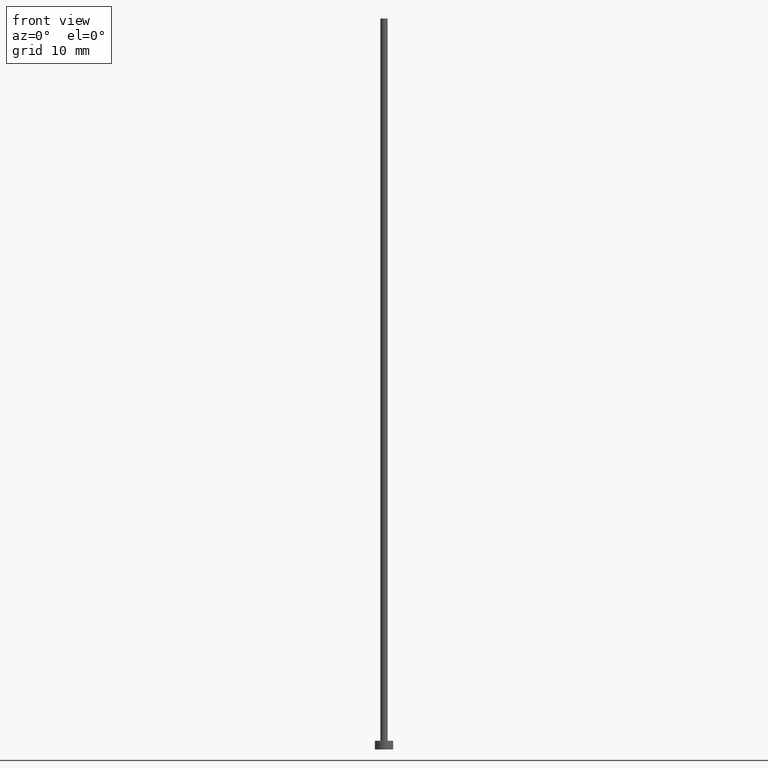
[diagram: clean part render]
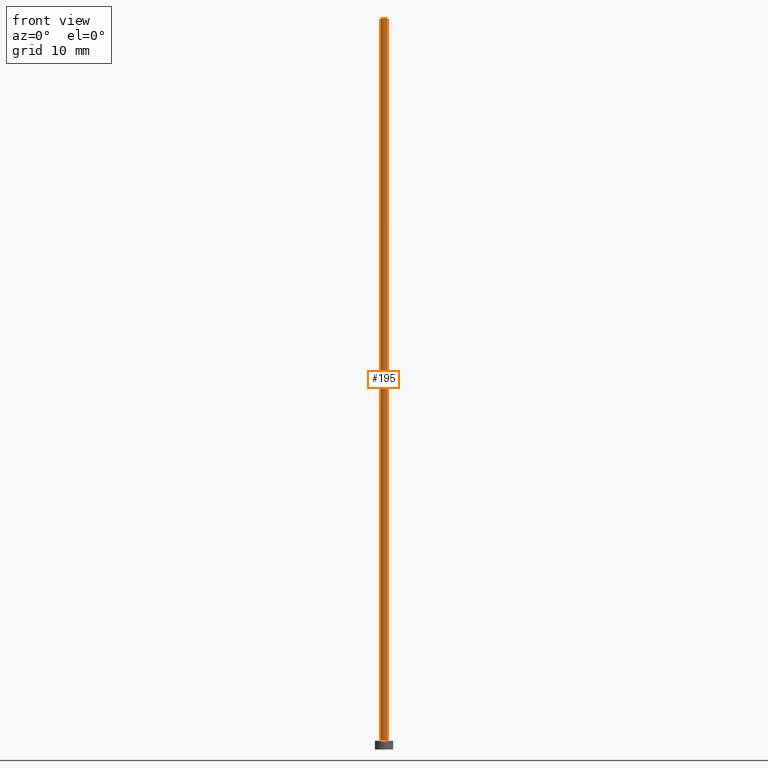
[diagram: same view with one face highlighted and labeled with its STEP entity id]
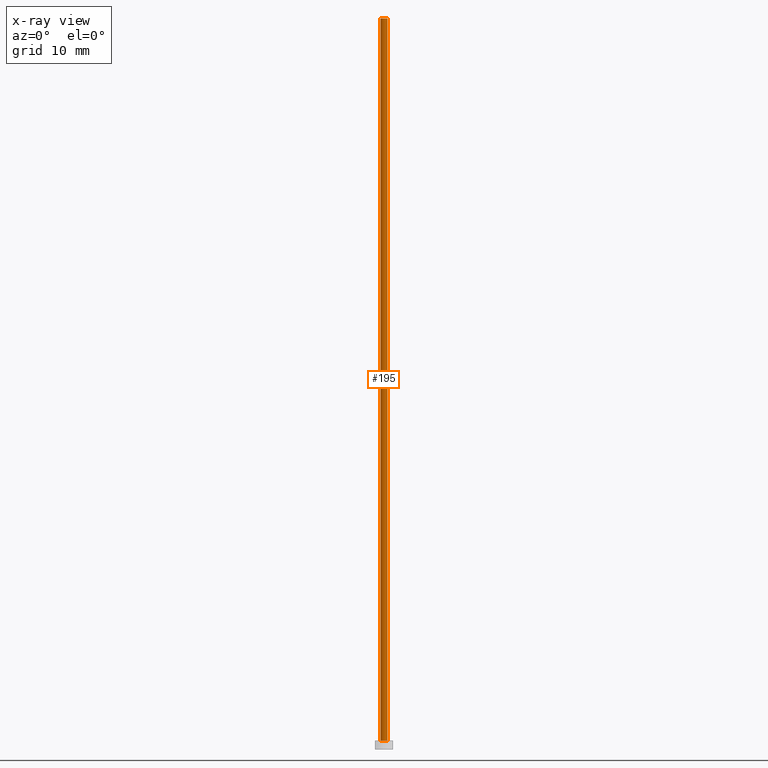
[diagram: x-ray of the same camera — body ghosted, the highlighted face saturated]
A machine part, front view. The second image highlights one B-rep face of the part: STEP entity #195.
The next image is the same camera in x-ray: the body ghosted, the highlighted face saturated — about 0% of this face is hidden behind the body in this view.
In plain terms, the highlighted cylindrical surface (edge-blend (fillet) strip) has radius 0.5 mm, axis along (-0, -0, -1).
Its self-contained STEP definition (entity closure, byte-faithful):
#8 = AXIS2_PLACEMENT_3D ( 'NONE', #77, #210, #229 ) ;
#11 = VERTEX_POINT ( 'NONE', #109 ) ;
#16 = EDGE_CURVE ( 'NONE', #11, #26, #21, .T. ) ;
#18 = CARTESIAN_POINT ( 'NONE',  ( 0.000000000000000000, 0.000000000000000000, 100.0000000000000000 ) ) ;
#21 = LINE ( 'NONE', #175, #135 ) ;
#26 = VERTEX_POINT ( 'NONE', #81 ) ;
#28 = ORIENTED_EDGE ( 'NONE', *, *, #70, .T. ) ;
#63 = DIRECTION ( 'NONE',  ( -1.000000000000000000, 0.000000000000000000, 0.000000000000000000 ) ) ;
#67 = LINE ( 'NONE', #156, #212 ) ;
#70 = EDGE_CURVE ( 'NONE', #73, #26, #196, .T. ) ;
#73 = VERTEX_POINT ( 'NONE', #190 ) ;
#77 = CARTESIAN_POINT ( 'NONE',  ( 0.000000000000000000, 0.000000000000000000, 1.199999999999999956 ) ) ;
#81 = CARTESIAN_POINT ( 'NONE',  ( 0.5000000000000000000, 6.123233995736766036E-17, 1.199999999999999956 ) ) ;
#90 = EDGE_CURVE ( 'NONE', #145, #11, #104, .T. ) ;
#104 = CIRCLE ( 'NONE', #178, 0.5000000000000000000 ) ;
#109 = CARTESIAN_POINT ( 'NONE',  ( 0.5000000000000000000, 6.123233995736766036E-17, 100.0000000000000000 ) ) ;
#111 = AXIS2_PLACEMENT_3D ( 'NONE', #157, #136, #63 ) ;
#115 = DIRECTION ( 'NONE',  ( -0.000000000000000000, -0.000000000000000000, -1.000000000000000000 ) ) ;
#127 = DIRECTION ( 'NONE',  ( 0.000000000000000000, 0.000000000000000000, 1.000000000000000000 ) ) ;
#135 = VECTOR ( 'NONE', #171, 1000.000000000000000 ) ;
#136 = DIRECTION ( 'NONE',  ( -0.000000000000000000, -0.000000000000000000, -1.000000000000000000 ) ) ;
#137 = ORIENTED_EDGE ( 'NONE', *, *, #214, .T. ) ;
#145 = VERTEX_POINT ( 'NONE', #198 ) ;
#147 = EDGE_LOOP ( 'NONE', ( #179, #228, #137, #28 ) ) ;
#153 = DIRECTION ( 'NONE',  ( 1.000000000000000000, 0.000000000000000000, 0.000000000000000000 ) ) ;
#156 = CARTESIAN_POINT ( 'NONE',  ( -0.5000000000000000000, 0.000000000000000000, 100.0000000000000000 ) ) ;
#157 = CARTESIAN_POINT ( 'NONE',  ( 0.000000000000000000, 0.000000000000000000, 100.0000000000000000 ) ) ;
#158 = FACE_OUTER_BOUND ( 'NONE', #147, .T. ) ;
#171 = DIRECTION ( 'NONE',  ( -0.000000000000000000, -0.000000000000000000, -1.000000000000000000 ) ) ;
#175 = CARTESIAN_POINT ( 'NONE',  ( 0.5000000000000000000, 6.123233995736766036E-17, 100.0000000000000000 ) ) ;
#178 = AXIS2_PLACEMENT_3D ( 'NONE', #18, #127, #153 ) ;
#179 = ORIENTED_EDGE ( 'NONE', *, *, #16, .F. ) ;
#190 = CARTESIAN_POINT ( 'NONE',  ( -0.5000000000000000000, 0.000000000000000000, 1.199999999999999956 ) ) ;
#193 = CYLINDRICAL_SURFACE ( 'NONE', #111, 0.5000000000000000000 ) ;
#195 = ADVANCED_FACE ( 'NONE', ( #158 ), #193, .T. ) ;
#196 = CIRCLE ( 'NONE', #8, 0.5000000000000000000 ) ;
#198 = CARTESIAN_POINT ( 'NONE',  ( -0.5000000000000000000, 0.000000000000000000, 100.0000000000000000 ) ) ;
#210 = DIRECTION ( 'NONE',  ( 0.000000000000000000, 0.000000000000000000, 1.000000000000000000 ) ) ;
#212 = VECTOR ( 'NONE', #115, 1000.000000000000000 ) ;
#214 = EDGE_CURVE ( 'NONE', #145, #73, #67, .T. ) ;
#228 = ORIENTED_EDGE ( 'NONE', *, *, #90, .F. ) ;
#229 = DIRECTION ( 'NONE',  ( 1.000000000000000000, 0.000000000000000000, 0.000000000000000000 ) ) ;